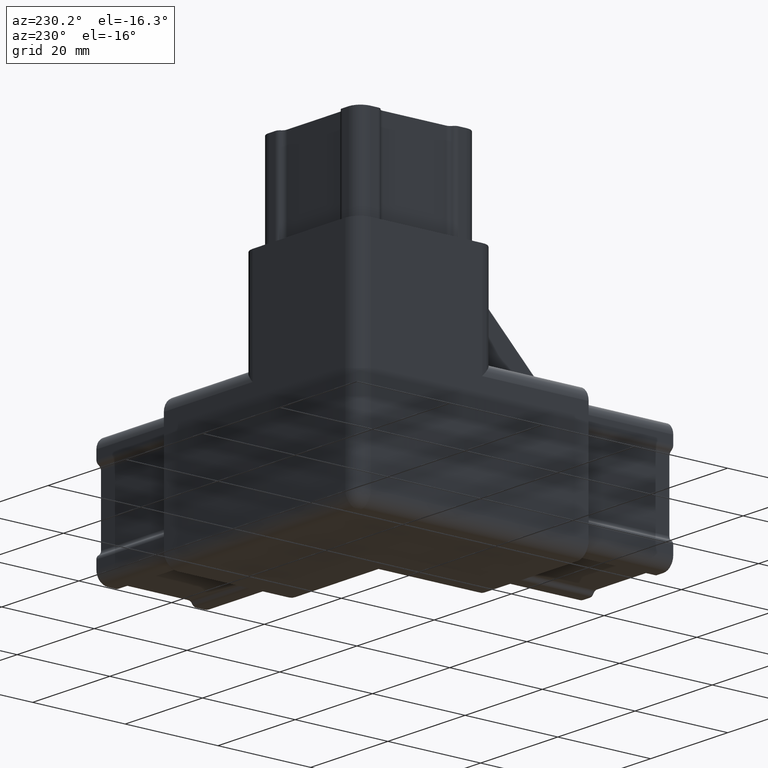
[diagram: clean part render]
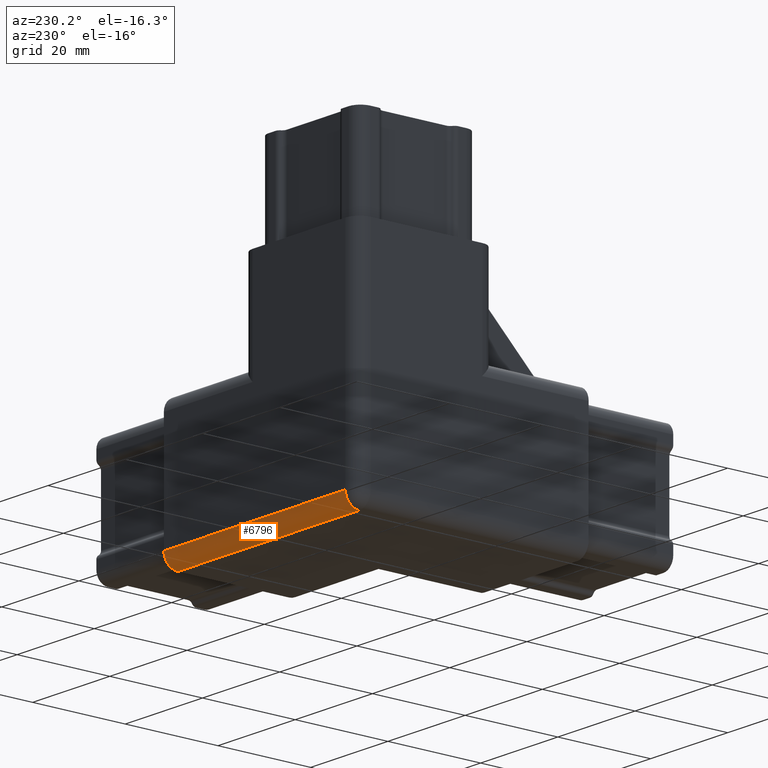
[diagram: same view with one face highlighted and labeled with its STEP entity id]
A machine part, auxiliary view. The second image highlights one B-rep face of the part: STEP entity #6796.
In plain terms, the highlighted cylindrical surface (edge-blend (fillet) strip) has radius 3 mm, axis along (-1, 0, 0).
Its self-contained STEP definition (entity closure, byte-faithful):
#178 = DIRECTION ( 'NONE',  ( -1.000000000000000000, 0.0000000000000000000, 0.0000000000000000000 ) ) ;
#293 = CARTESIAN_POINT ( 'NONE',  ( 50.00000000000000000, 50.00000000000000000, -18.66666666666662500 ) ) ;
#654 = ORIENTED_EDGE ( 'NONE', *, *, #6785, .F. ) ;
#1195 = DIRECTION ( 'NONE',  ( -1.000000000000000000, 0.0000000000000000000, 0.0000000000000000000 ) ) ;
#1529 = CARTESIAN_POINT ( 'NONE',  ( 30.00000000000000000, 50.00000000000000000, -18.66666666666662500 ) ) ;
#1858 = DIRECTION ( 'NONE',  ( -1.000000000000000000, 0.0000000000000000000, 0.0000000000000000000 ) ) ;
#1886 = ORIENTED_EDGE ( 'NONE', *, *, #14573, .F. ) ;
#2167 = LINE ( 'NONE', #1529, #17728 ) ;
#3469 = EDGE_CURVE ( 'NONE', #4535, #18652, #16943, .T. ) ;
#4535 = VERTEX_POINT ( 'NONE', #18084 ) ;
#4976 = VERTEX_POINT ( 'NONE', #293 ) ;
#5087 = VERTEX_POINT ( 'NONE', #8187 ) ;
#5525 = DIRECTION ( 'NONE',  ( 0.0000000000000000000, 0.0000000000000000000, 1.000000000000000000 ) ) ;
#5992 = DIRECTION ( 'NONE',  ( 0.0000000000000000000, 0.0000000000000000000, -1.000000000000000000 ) ) ;
#6440 = AXIS2_PLACEMENT_3D ( 'NONE', #19503, #178, #15043 ) ;
#6706 = CYLINDRICAL_SURFACE ( 'NONE', #6440, 2.999999999999999100 ) ;
#6785 = EDGE_CURVE ( 'NONE', #5087, #4976, #7179, .T. ) ;
#6796 = ADVANCED_FACE ( 'NONE', ( #17096 ), #6706, .T. ) ;
#7179 = CIRCLE ( 'NONE', #15790, 2.999999999999999100 ) ;
#8187 = CARTESIAN_POINT ( 'NONE',  ( 50.00000000000000000, 47.00000000000000000, -21.66666666666662500 ) ) ;
#10046 = CARTESIAN_POINT ( 'NONE',  ( 2.999999999999999100, 47.00000000000000000, -21.66666666666662500 ) ) ;
#10731 = EDGE_CURVE ( 'NONE', #4976, #4535, #2167, .T. ) ;
#11451 = CARTESIAN_POINT ( 'NONE',  ( 2.999999999999999100, 47.00000000000000000, -18.66666666666662500 ) ) ;
#11851 = EDGE_LOOP ( 'NONE', ( #654, #1886, #16715, #16410 ) ) ;
#12493 = VECTOR ( 'NONE', #18996, 1000.000000000000000 ) ;
#13610 = DIRECTION ( 'NONE',  ( 1.000000000000000000, 0.0000000000000000000, 0.0000000000000000000 ) ) ;
#14275 = CARTESIAN_POINT ( 'NONE',  ( 30.00000000000000000, 47.00000000000000000, -21.66666666666662500 ) ) ;
#14573 = EDGE_CURVE ( 'NONE', #18652, #5087, #16492, .T. ) ;
#15043 = DIRECTION ( 'NONE',  ( 0.0000000000000000000, 0.0000000000000000000, 1.000000000000000000 ) ) ;
#15173 = CARTESIAN_POINT ( 'NONE',  ( 50.00000000000000000, 47.00000000000000000, -18.66666666666662500 ) ) ;
#15790 = AXIS2_PLACEMENT_3D ( 'NONE', #15173, #13610, #5992 ) ;
#16410 = ORIENTED_EDGE ( 'NONE', *, *, #10731, .F. ) ;
#16492 = LINE ( 'NONE', #14275, #12493 ) ;
#16715 = ORIENTED_EDGE ( 'NONE', *, *, #3469, .F. ) ;
#16943 = CIRCLE ( 'NONE', #17507, 2.999999999999999100 ) ;
#17096 = FACE_OUTER_BOUND ( 'NONE', #11851, .T. ) ;
#17507 = AXIS2_PLACEMENT_3D ( 'NONE', #11451, #1195, #5525 ) ;
#17728 = VECTOR ( 'NONE', #1858, 1000.000000000000000 ) ;
#18084 = CARTESIAN_POINT ( 'NONE',  ( 2.999999999999999100, 50.00000000000000000, -18.66666666666662500 ) ) ;
#18652 = VERTEX_POINT ( 'NONE', #10046 ) ;
#18996 = DIRECTION ( 'NONE',  ( 1.000000000000000000, -0.0000000000000000000, -0.0000000000000000000 ) ) ;
#19503 = CARTESIAN_POINT ( 'NONE',  ( 30.00000000000000000, 47.00000000000000000, -18.66666666666662500 ) ) ;